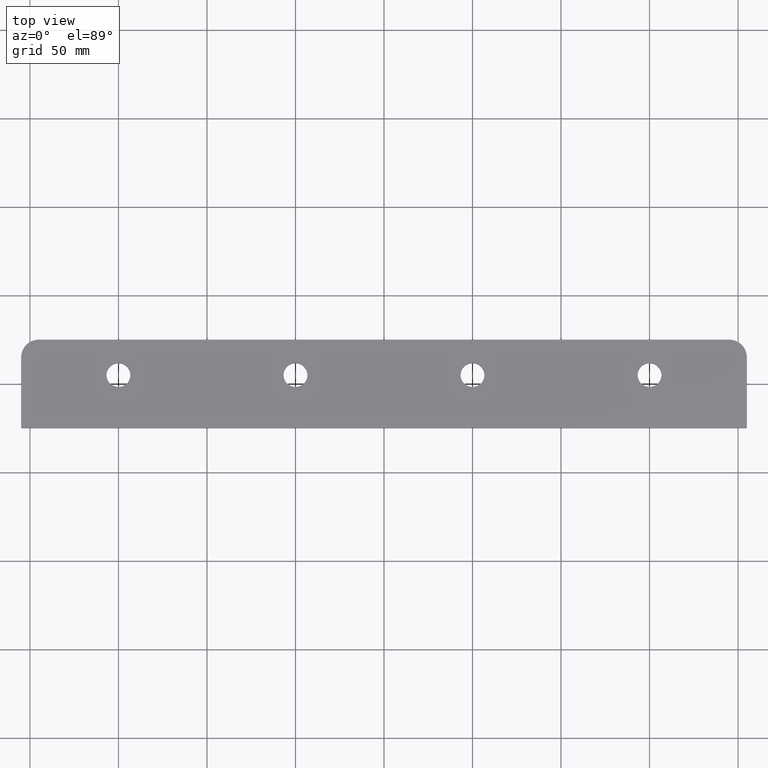
[diagram: clean part render]
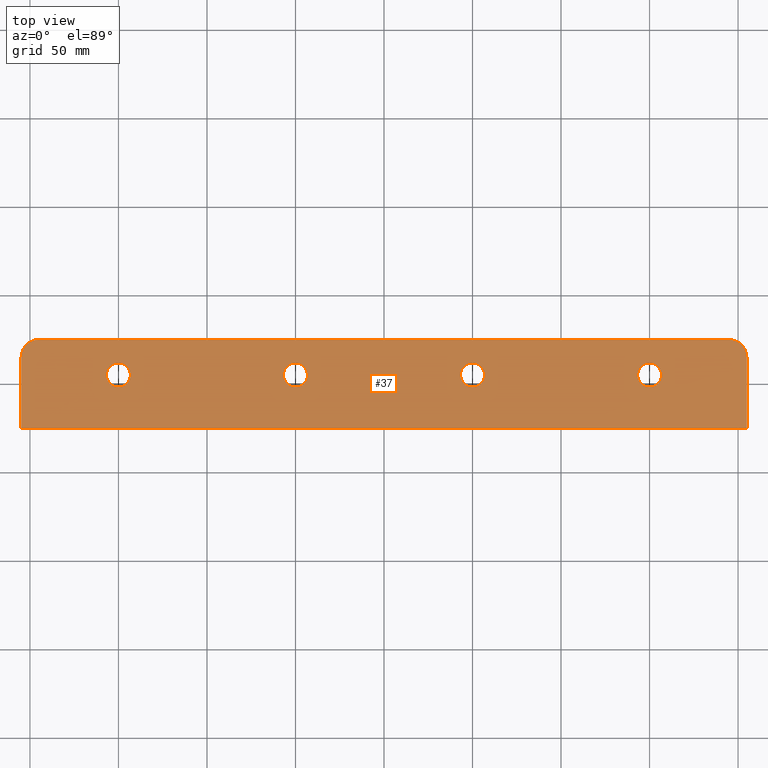
[diagram: same view with one face highlighted and labeled with its STEP entity id]
A machine part, top view. The second image highlights one B-rep face of the part: STEP entity #37.
In plain terms, the highlighted planar face has unit normal (0, 0, -1).
Its self-contained STEP definition (entity closure, byte-faithful):
#2 = ORIENTED_EDGE ( 'NONE', *, *, #81, .F. ) ;
#7 = VECTOR ( 'NONE', #271, 1000.000000000000000 ) ;
#10 = DIRECTION ( 'NONE',  ( 1.000000000000000000, 0.000000000000000000, 0.000000000000000000 ) ) ;
#16 = VECTOR ( 'NONE', #152, 1000.000000000000000 ) ;
#18 = CARTESIAN_POINT ( 'NONE',  ( 205.0000000000022453, -25.00000000000000000, 2.220650890400619679E-13 ) ) ;
#22 = AXIS2_PLACEMENT_3D ( 'NONE', #149, #97, #10 ) ;
#27 = FACE_BOUND ( 'NONE', #319, .T. ) ;
#34 = CARTESIAN_POINT ( 'NONE',  ( 0.000000000000000000, 0.000000000000000000, 0.000000000000000000 ) ) ;
#37 = ADVANCED_FACE ( 'NONE', ( #355, #542, #448, #27, #155 ), #484, .F. ) ;
#43 = ORIENTED_EDGE ( 'NONE', *, *, #558, .T. ) ;
#56 = ORIENTED_EDGE ( 'NONE', *, *, #95, .F. ) ;
#62 = AXIS2_PLACEMENT_3D ( 'NONE', #515, #115, #446 ) ;
#67 = DIRECTION ( 'NONE',  ( 1.540961891649139084E-35, -4.342972024593210827E-32, 1.000000000000000000 ) ) ;
#68 = CIRCLE ( 'NONE', #408, 6.749999999999978684 ) ;
#71 = CARTESIAN_POINT ( 'NONE',  ( -204.9999999999996305, -25.00000000000000000, 3.885985427338354237E-13 ) ) ;
#78 = AXIS2_PLACEMENT_3D ( 'NONE', #309, #404, #493 ) ;
#81 = EDGE_CURVE ( 'NONE', #557, #233, #341, .T. ) ;
#82 = CARTESIAN_POINT ( 'NONE',  ( -204.9999999999996305, -25.00000000000000000, 3.885985427338354237E-13 ) ) ;
#84 = CARTESIAN_POINT ( 'NONE',  ( -204.9999999999996305, 25.00000000000001066, 3.885575745037741546E-13 ) ) ;
#95 = EDGE_CURVE ( 'NONE', #432, #338, #399, .T. ) ;
#96 = VERTEX_POINT ( 'NONE', #449 ) ;
#97 = DIRECTION ( 'NONE',  ( 1.540961891649139084E-35, -4.342972024593210827E-32, 1.000000000000000000 ) ) ;
#100 = CIRCLE ( 'NONE', #167, 6.749999999999992006 ) ;
#108 = AXIS2_PLACEMENT_3D ( 'NONE', #537, #203, #113 ) ;
#113 = DIRECTION ( 'NONE',  ( 1.000000000000000000, 0.000000000000000000, 0.000000000000000000 ) ) ;
#114 = EDGE_CURVE ( 'NONE', #376, #593, #417, .T. ) ;
#115 = DIRECTION ( 'NONE',  ( 1.540961891649139084E-35, -4.342972024593210827E-32, 1.000000000000000000 ) ) ;
#117 = ORIENTED_EDGE ( 'NONE', *, *, #487, .T. ) ;
#126 = LINE ( 'NONE', #82, #7 ) ;
#134 = CARTESIAN_POINT ( 'NONE',  ( 143.2500000000008242, 5.000000000000039968, 2.775516593332830284E-13 ) ) ;
#136 = DIRECTION ( 'NONE',  ( 1.000000000000000000, 0.000000000000000000, 0.000000000000000000 ) ) ;
#139 = DIRECTION ( 'NONE',  ( 1.540961891649139084E-35, -4.342972024593210827E-32, 1.000000000000000000 ) ) ;
#140 = EDGE_CURVE ( 'NONE', #406, #434, #464, .T. ) ;
#148 = AXIS2_PLACEMENT_3D ( 'NONE', #300, #67, #588 ) ;
#149 = CARTESIAN_POINT ( 'NONE',  ( -49.99999999999982236, 5.000000000000039080, 5.550705440825169506E-14 ) ) ;
#152 = DIRECTION ( 'NONE',  ( 1.848892746611746419E-32, 1.000000000000000000, -4.930380657631323784E-32 ) ) ;
#154 = CARTESIAN_POINT ( 'NONE',  ( -204.9999999999996305, -25.00000000000000000, 3.885985427338354237E-13 ) ) ;
#155 = FACE_OUTER_BOUND ( 'NONE', #165, .T. ) ;
#165 = EDGE_LOOP ( 'NONE', ( #428, #43, #520, #499, #496, #117 ) ) ;
#167 = AXIS2_PLACEMENT_3D ( 'NONE', #592, #513, #186 ) ;
#180 = CIRCLE ( 'NONE', #148, 10.00000000000000888 ) ;
#183 = DIRECTION ( 'NONE',  ( 1.000000000000000000, 0.000000000000000000, 0.000000000000000000 ) ) ;
#186 = DIRECTION ( 'NONE',  ( 1.000000000000000000, 0.000000000000000000, 0.000000000000000000 ) ) ;
#189 = CARTESIAN_POINT ( 'NONE',  ( -204.9999999999996305, 15.00000000000000355, 3.885657681497864185E-13 ) ) ;
#195 = AXIS2_PLACEMENT_3D ( 'NONE', #461, #364, #280 ) ;
#203 = DIRECTION ( 'NONE',  ( 1.540961891649139084E-35, -4.342972024593210827E-32, 1.000000000000000000 ) ) ;
#206 = CIRCLE ( 'NONE', #62, 6.749999999999978684 ) ;
#216 = CARTESIAN_POINT ( 'NONE',  ( 156.7500000000007674, 5.000000000000039080, 2.775516593332830284E-13 ) ) ;
#217 = AXIS2_PLACEMENT_3D ( 'NONE', #34, #387, #529 ) ;
#225 = DIRECTION ( 'NONE',  ( 1.000000000000000000, 0.000000000000000000, 0.000000000000000000 ) ) ;
#226 = CARTESIAN_POINT ( 'NONE',  ( 205.0000000000022453, 15.00000000000001066, 2.220323144560129122E-13 ) ) ;
#229 = DIRECTION ( 'NONE',  ( 1.540961891649139084E-35, -4.342972024593210827E-32, 1.000000000000000000 ) ) ;
#232 = EDGE_CURVE ( 'NONE', #96, #507, #360, .T. ) ;
#233 = VERTEX_POINT ( 'NONE', #134 ) ;
#243 = CARTESIAN_POINT ( 'NONE',  ( -156.7499999999998863, 5.000000000000039968, 5.550705440825169506E-14 ) ) ;
#245 = AXIS2_PLACEMENT_3D ( 'NONE', #362, #229, #183 ) ;
#247 = ORIENTED_EDGE ( 'NONE', *, *, #140, .F. ) ;
#260 = EDGE_CURVE ( 'NONE', #593, #458, #475, .T. ) ;
#261 = ORIENTED_EDGE ( 'NONE', *, *, #232, .F. ) ;
#271 = DIRECTION ( 'NONE',  ( -1.848892746611746419E-32, -1.000000000000000000, 4.930380657631323784E-32 ) ) ;
#275 = EDGE_LOOP ( 'NONE', ( #2, #381 ) ) ;
#277 = DIRECTION ( 'NONE',  ( 1.540961891649139084E-35, -4.342972024593210827E-32, 1.000000000000000000 ) ) ;
#280 = DIRECTION ( 'NONE',  ( -1.000000000000000000, 0.000000000000000000, 0.000000000000000000 ) ) ;
#285 = ORIENTED_EDGE ( 'NONE', *, *, #402, .F. ) ;
#289 = DIRECTION ( 'NONE',  ( 1.000000000000000000, 2.773339119917615797E-32, 1.540961891649054357E-35 ) ) ;
#294 = AXIS2_PLACEMENT_3D ( 'NONE', #368, #277, #225 ) ;
#296 = CARTESIAN_POINT ( 'NONE',  ( -56.74999999999980815, 5.000000000000039968, 5.550705440825169506E-14 ) ) ;
#300 = CARTESIAN_POINT ( 'NONE',  ( 195.0000000000008527, 15.00000000000001066, -1.229046901844045482E-17 ) ) ;
#303 = EDGE_CURVE ( 'NONE', #507, #96, #100, .T. ) ;
#308 = ORIENTED_EDGE ( 'NONE', *, *, #329, .F. ) ;
#309 = CARTESIAN_POINT ( 'NONE',  ( -49.99999999999982236, 5.000000000000039080, 5.550705440825169506E-14 ) ) ;
#314 = VECTOR ( 'NONE', #289, 1000.000000000000000 ) ;
#319 = EDGE_LOOP ( 'NONE', ( #308, #56 ) ) ;
#329 = EDGE_CURVE ( 'NONE', #338, #432, #68, .T. ) ;
#336 = VERTEX_POINT ( 'NONE', #226 ) ;
#338 = VERTEX_POINT ( 'NONE', #359 ) ;
#341 = CIRCLE ( 'NONE', #108, 6.749999999999978684 ) ;
#355 = FACE_BOUND ( 'NONE', #454, .T. ) ;
#358 = EDGE_CURVE ( 'NONE', #458, #567, #126, .T. ) ;
#359 = CARTESIAN_POINT ( 'NONE',  ( -143.2499999999999432, 5.000000000000039080, 5.550705440825169506E-14 ) ) ;
#360 = CIRCLE ( 'NONE', #245, 6.749999999999992006 ) ;
#362 = CARTESIAN_POINT ( 'NONE',  ( 50.00000000000027001, 5.000000000000056843, -4.096823006130383670E-18 ) ) ;
#364 = DIRECTION ( 'NONE',  ( 1.540961891649139084E-35, -4.342972024593210827E-32, 1.000000000000000000 ) ) ;
#368 = CARTESIAN_POINT ( 'NONE',  ( -149.9999999999999147, 5.000000000000039080, 5.550705440825169506E-14 ) ) ;
#376 = VERTEX_POINT ( 'NONE', #421 ) ;
#381 = ORIENTED_EDGE ( 'NONE', *, *, #519, .F. ) ;
#387 = DIRECTION ( 'NONE',  ( 1.540961891649054357E-35, 4.342972024593211922E-32, -1.000000000000000000 ) ) ;
#399 = CIRCLE ( 'NONE', #294, 6.749999999999978684 ) ;
#402 = EDGE_CURVE ( 'NONE', #434, #406, #466, .T. ) ;
#404 = DIRECTION ( 'NONE',  ( 1.540961891649139084E-35, -4.342972024593210827E-32, 1.000000000000000000 ) ) ;
#406 = VERTEX_POINT ( 'NONE', #526 ) ;
#408 = AXIS2_PLACEMENT_3D ( 'NONE', #457, #139, #136 ) ;
#417 = LINE ( 'NONE', #84, #527 ) ;
#419 = ORIENTED_EDGE ( 'NONE', *, *, #303, .F. ) ;
#421 = CARTESIAN_POINT ( 'NONE',  ( 195.0000000000008527, 25.00000000000000355, -2.048411503070122216E-17 ) ) ;
#423 = VERTEX_POINT ( 'NONE', #18 ) ;
#428 = ORIENTED_EDGE ( 'NONE', *, *, #480, .T. ) ;
#432 = VERTEX_POINT ( 'NONE', #243 ) ;
#433 = LINE ( 'NONE', #154, #314 ) ;
#434 = VERTEX_POINT ( 'NONE', #296 ) ;
#435 = CARTESIAN_POINT ( 'NONE',  ( -194.9999999999998295, 25.00000000000001066, -5.553163534628853100E-14 ) ) ;
#445 = EDGE_LOOP ( 'NONE', ( #419, #261 ) ) ;
#446 = DIRECTION ( 'NONE',  ( 1.000000000000000000, 0.000000000000000000, 0.000000000000000000 ) ) ;
#448 = FACE_BOUND ( 'NONE', #275, .T. ) ;
#449 = CARTESIAN_POINT ( 'NONE',  ( 43.25000000000028422, 5.000000000000057732, -4.096823006130383670E-18 ) ) ;
#454 = EDGE_LOOP ( 'NONE', ( #247, #285 ) ) ;
#457 = CARTESIAN_POINT ( 'NONE',  ( -149.9999999999999147, 5.000000000000039080, 5.550705440825169506E-14 ) ) ;
#458 = VERTEX_POINT ( 'NONE', #189 ) ;
#461 = CARTESIAN_POINT ( 'NONE',  ( -194.9999999999998295, 15.00000000000000355, -5.552344170027624184E-14 ) ) ;
#464 = CIRCLE ( 'NONE', #78, 6.749999999999992006 ) ;
#466 = CIRCLE ( 'NONE', #22, 6.749999999999992006 ) ;
#475 = CIRCLE ( 'NONE', #195, 10.00000000000000888 ) ;
#478 = CARTESIAN_POINT ( 'NONE',  ( 56.75000000000025580, 5.000000000000056843, -4.096823006130383670E-18 ) ) ;
#480 = EDGE_CURVE ( 'NONE', #423, #336, #524, .T. ) ;
#484 = PLANE ( 'NONE',  #217 ) ;
#487 = EDGE_CURVE ( 'NONE', #567, #423, #433, .T. ) ;
#493 = DIRECTION ( 'NONE',  ( 1.000000000000000000, 0.000000000000000000, 0.000000000000000000 ) ) ;
#496 = ORIENTED_EDGE ( 'NONE', *, *, #358, .T. ) ;
#499 = ORIENTED_EDGE ( 'NONE', *, *, #260, .T. ) ;
#507 = VERTEX_POINT ( 'NONE', #478 ) ;
#513 = DIRECTION ( 'NONE',  ( 1.540961891649139084E-35, -4.342972024593210827E-32, 1.000000000000000000 ) ) ;
#515 = CARTESIAN_POINT ( 'NONE',  ( 150.0000000000007958, 5.000000000000039080, 2.775516593332830284E-13 ) ) ;
#519 = EDGE_CURVE ( 'NONE', #233, #557, #206, .T. ) ;
#520 = ORIENTED_EDGE ( 'NONE', *, *, #114, .T. ) ;
#524 = LINE ( 'NONE', #569, #16 ) ;
#526 = CARTESIAN_POINT ( 'NONE',  ( -43.24999999999982947, 5.000000000000039080, 5.550705440825169506E-14 ) ) ;
#527 = VECTOR ( 'NONE', #545, 1000.000000000000000 ) ;
#529 = DIRECTION ( 'NONE',  ( -1.000000000000000000, -2.773339119917615797E-32, -1.540961891649054357E-35 ) ) ;
#537 = CARTESIAN_POINT ( 'NONE',  ( 150.0000000000007958, 5.000000000000039080, 2.775516593332830284E-13 ) ) ;
#542 = FACE_BOUND ( 'NONE', #445, .T. ) ;
#545 = DIRECTION ( 'NONE',  ( -1.000000000000000000, -2.773339119917615797E-32, -1.540961891649054357E-35 ) ) ;
#557 = VERTEX_POINT ( 'NONE', #216 ) ;
#558 = EDGE_CURVE ( 'NONE', #336, #376, #180, .T. ) ;
#567 = VERTEX_POINT ( 'NONE', #71 ) ;
#569 = CARTESIAN_POINT ( 'NONE',  ( 205.0000000000022453, -25.00000000000000000, 2.220650890400619679E-13 ) ) ;
#588 = DIRECTION ( 'NONE',  ( -1.000000000000000000, 0.000000000000000000, 0.000000000000000000 ) ) ;
#592 = CARTESIAN_POINT ( 'NONE',  ( 50.00000000000027001, 5.000000000000056843, -4.096823006130383670E-18 ) ) ;
#593 = VERTEX_POINT ( 'NONE', #435 ) ;